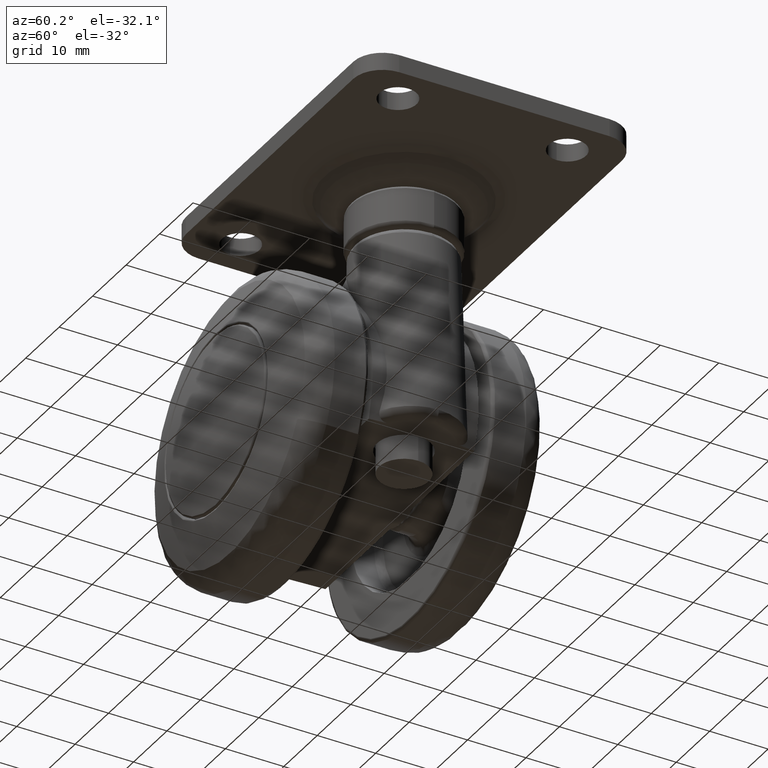
[diagram: clean part render]
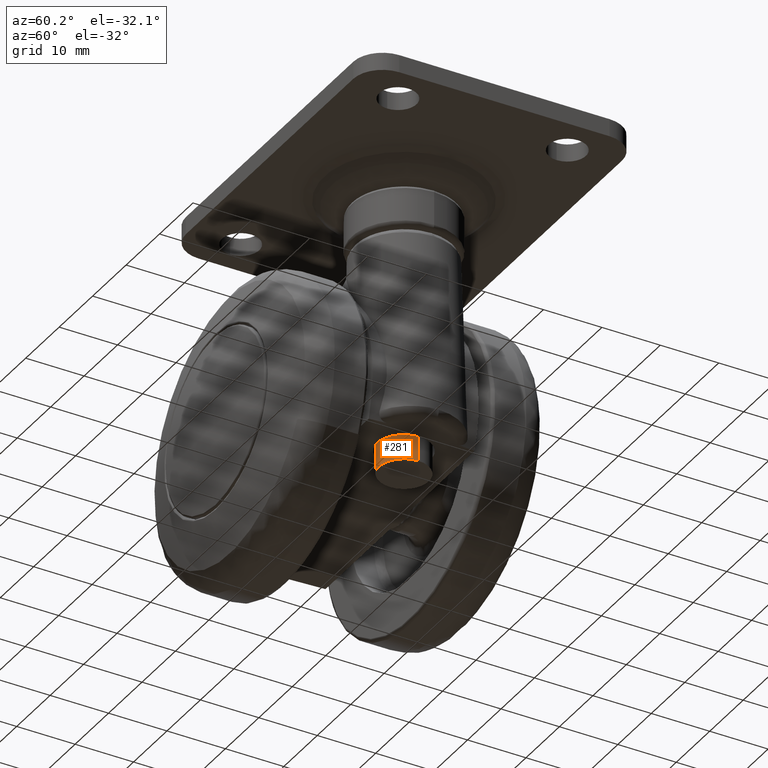
[diagram: same view with one face highlighted and labeled with its STEP entity id]
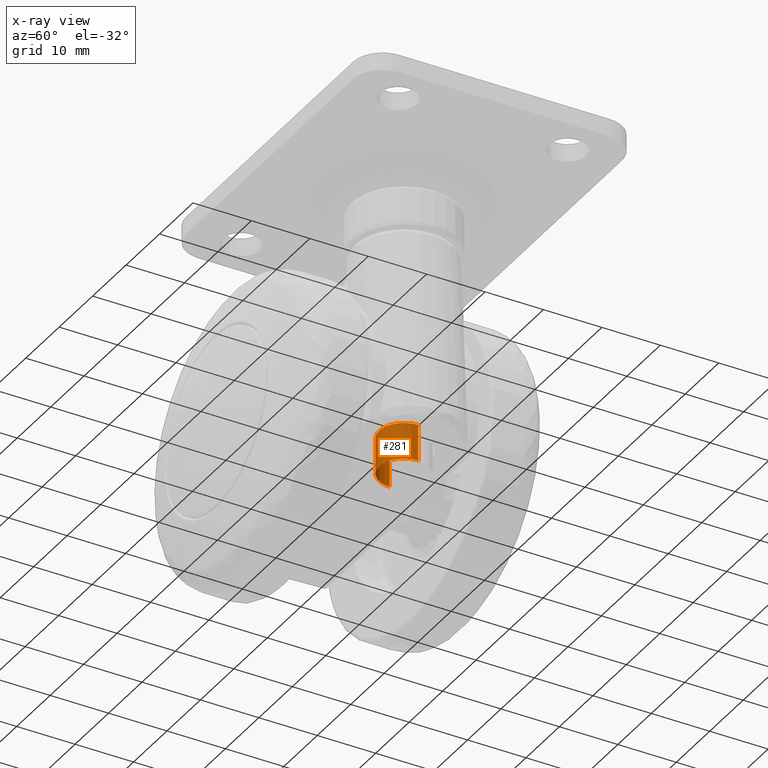
[diagram: x-ray of the same camera — body ghosted, the highlighted face saturated]
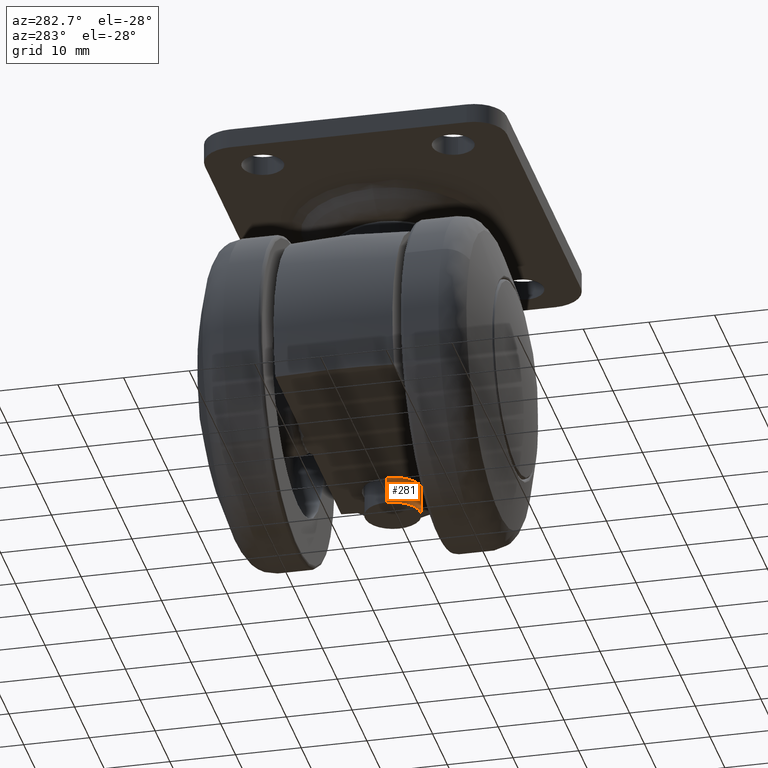
[diagram: same view with one face highlighted and labeled with its STEP entity id]
A machine part, auxiliary view. The second image highlights one B-rep face of the part: STEP entity #281.
The next image is the same camera in x-ray: the body ghosted, the highlighted face saturated — about 0% of this face is hidden behind the body in this view.
A second angle (auxiliary view) of the same face is appended — the face is thin or edge-on in the first view.
In plain terms, the highlighted cylindrical surface (edge-blend (fillet) strip) has radius 4.25 mm, axis along (-0, 0, -1).
Its self-contained STEP definition (entity closure, byte-faithful):
#281=ADVANCED_FACE('',(#1549),#1548,.T.);
#1548=CYLINDRICAL_SURFACE('',#6323,4.25000000000E+00);
#1549=FACE_OUTER_BOUND('',#6324,.T.);
#6320=CARTESIAN_POINT('',(0.00000000000E+00,4.83660259247E+01,1.68869076950E-13));
#6321=DIRECTION('',(-0.00000000000E+00,1.00000000000E+00,3.49148133884E-15));
#6322=DIRECTION('',(0.00000000000E+00,-3.49148133884E-15,1.00000000000E+00));
#6323=AXIS2_PLACEMENT_3D('',#6320,#6321,#6322);
#6324=EDGE_LOOP('',(#7017,#7018,#7019,#7020));
#7017=ORIENTED_EDGE('',*,*,#7361,.F.);
#7018=ORIENTED_EDGE('',*,*,#7358,.T.);
#7019=ORIENTED_EDGE('',*,*,#7285,.T.);
#7020=ORIENTED_EDGE('',*,*,#7360,.F.);
#7285=EDGE_CURVE('',#8810,#8809,#8817,.T.);
#7358=EDGE_CURVE('',#9297,#8810,#9298,.T.);
#7360=EDGE_CURVE('',#9304,#8809,#9311,.T.);
#7361=EDGE_CURVE('',#9297,#9304,#9317,.T.);
#8809=VERTEX_POINT('',#10633);
#8810=VERTEX_POINT('',#10634);
#8817=CIRCLE('',#10642,4.25000000000E+00);
#9297=VERTEX_POINT('',#10936);
#9298=(BOUNDED_CURVE() B_SPLINE_CURVE(1,(#10937,#10938),.UNSPECIFIED.,.F.,.F.) B_SPLINE_CURVE_WITH_KNOTS((2,2),(8.33333347523E-02,9.16666668865E-01),.UNSPECIFIED.) CURVE() GEOMETRIC_REPRESENTATION_ITEM() RATIONAL_B_SPLINE_CURVE((1.00000000000E+00,1.00000000000E+00)) REPRESENTATION_ITEM('') );
#9304=VERTEX_POINT('',#10939);
#9311=(BOUNDED_CURVE() B_SPLINE_CURVE(1,(#10944,#10945),.UNSPECIFIED.,.F.,.F.) B_SPLINE_CURVE_WITH_KNOTS((2,2),(8.33333333333E-02,9.16666666667E-01),.UNSPECIFIED.) CURVE() GEOMETRIC_REPRESENTATION_ITEM() RATIONAL_B_SPLINE_CURVE((7.50000000000E-01,7.50000000000E-01)) REPRESENTATION_ITEM('') );
#9317=CIRCLE('',#10949,4.25000000000E+00);
#10633=CARTESIAN_POINT('',(4.44089209850E-16,5.15000000000E+01,-4.25000000000E+00));
#10634=CARTESIAN_POINT('',(5.20457700375E-16,5.15000000000E+01,4.25000000000E+00));
#10639=CARTESIAN_POINT('',(0.00000000000E+00,5.15000000000E+01,1.79811288950E-13));
#10640=DIRECTION('',(0.00000000000E+00,-1.00000000000E+00,-3.34373052122E-15));
#10641=DIRECTION('',(-0.00000000000E+00,-3.34373052122E-15,1.00000000000E+00));
#10642=AXIS2_PLACEMENT_3D('',#10639,#10640,#10641);
#10936=CARTESIAN_POINT('',(2.96059473233E-16,4.52320508076E+01,4.25000000000E+00));
#10937=CARTESIAN_POINT('',(0.00000000000E+00,4.52320508182E+01,4.25000000000E+00));
#10938=CARTESIAN_POINT('',(0.00000000000E+00,5.15000000165E+01,4.25000000000E+00));
#10939=CARTESIAN_POINT('',(0.00000000000E+00,4.52320508076E+01,-4.25000000000E+00));
#10944=CARTESIAN_POINT('',(-2.96059473233E-16,4.52320508076E+01,-4.25000000000E+00));
#10945=CARTESIAN_POINT('',(-2.96059473233E-16,5.15000000000E+01,-4.25000000000E+00));
#10946=CARTESIAN_POINT('',(0.00000000000E+00,4.52320508076E+01,1.57926861312E-13));
#10947=DIRECTION('',(8.75811540203E-47,-1.00000000000E+00,-3.34373052122E-15));
#10948=DIRECTION('',(-1.22460635382E-16,3.34373052122E-15,-1.00000000000E+00));
#10949=AXIS2_PLACEMENT_3D('',#10946,#10947,#10948);